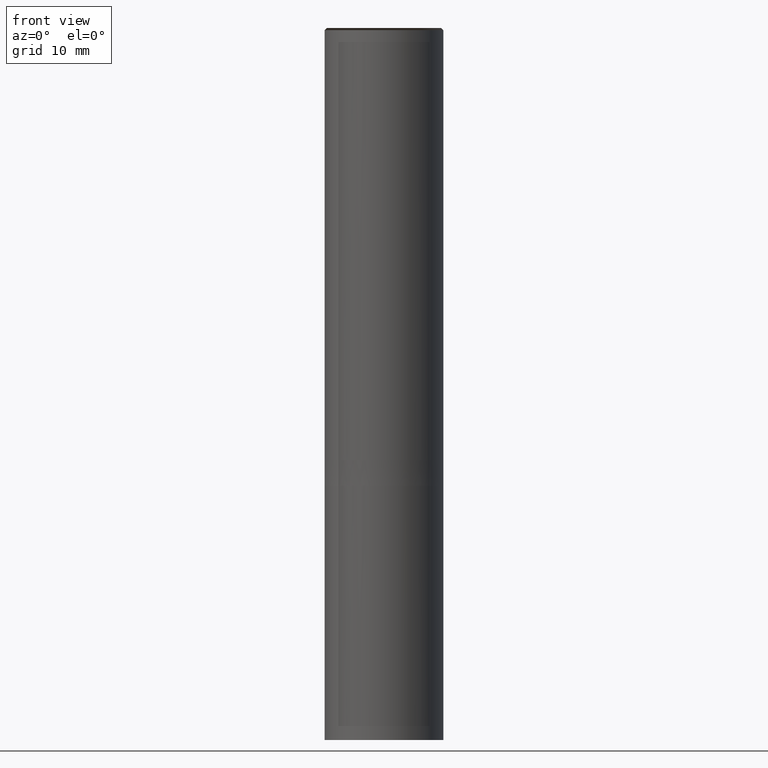
[diagram: clean part render]
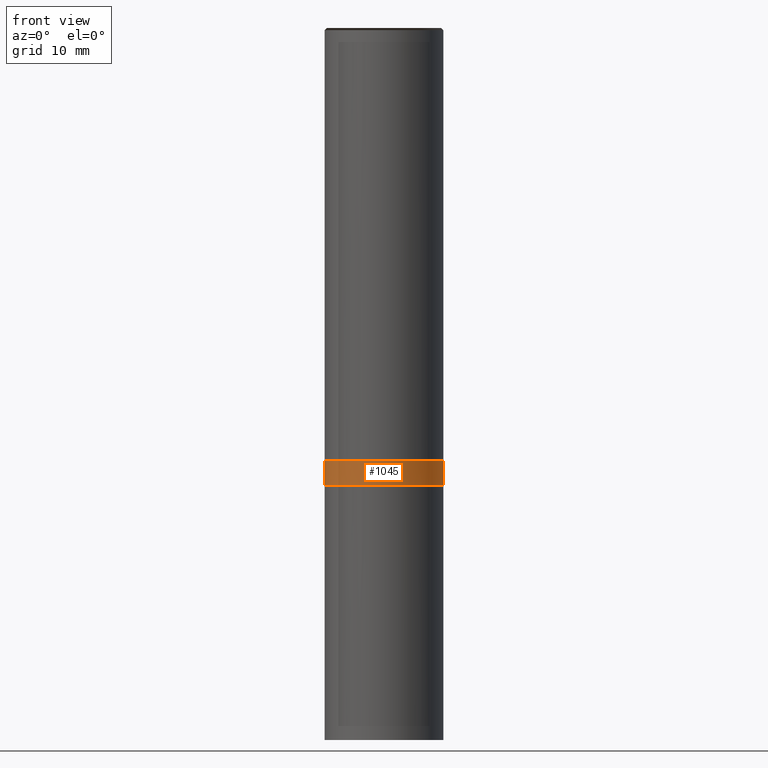
[diagram: same view with one face highlighted and labeled with its STEP entity id]
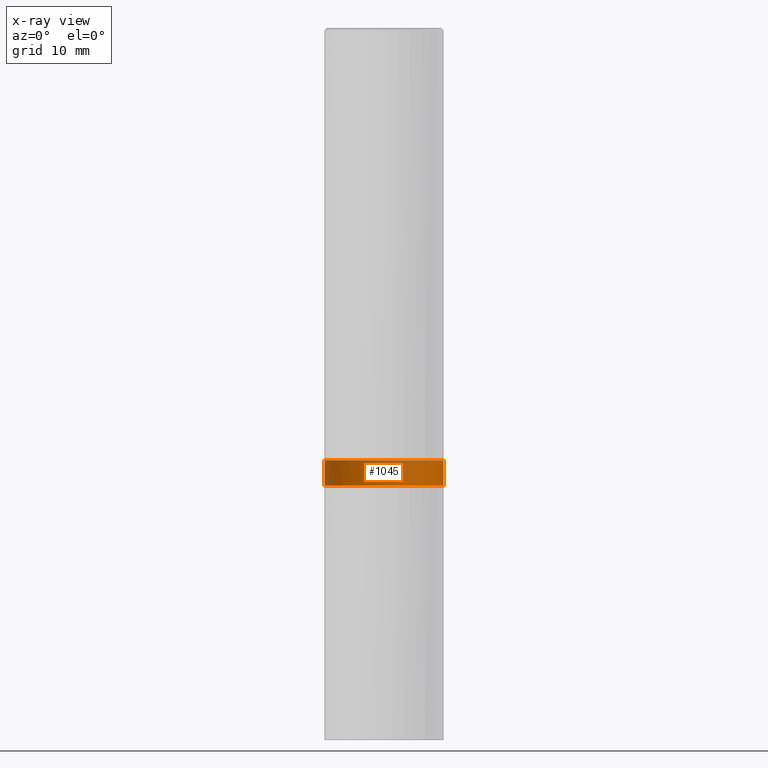
[diagram: x-ray of the same camera — body ghosted, the highlighted face saturated]
A machine part, front view. The second image highlights one B-rep face of the part: STEP entity #1045.
The next image is the same camera in x-ray: the body ghosted, the highlighted face saturated — about 0% of this face is hidden behind the body in this view.
In plain terms, the highlighted face is a freeform B-spline surface patch.
Its self-contained STEP definition (entity closure, byte-faithful):
#768=CARTESIAN_POINT('',(7.0,0.0,-3.0));
#772=CARTESIAN_POINT('',(-7.0,0.0,-3.0));
#777=CARTESIAN_POINT('',(-7.0,-7.0,-3.0));
#778=CARTESIAN_POINT('',(0.0,-7.0,-3.0));
#779=CARTESIAN_POINT('',(7.0,-7.0,-3.0));
#780=CARTESIAN_POINT('',(7.0,0.0,0.0));
#784=CARTESIAN_POINT('',(-7.0,0.0,0.0));
#796=CARTESIAN_POINT('',(-7.0,-7.0,0.0));
#797=CARTESIAN_POINT('',(0.0,-7.0,0.0));
#798=CARTESIAN_POINT('',(7.0,-7.0,0.0));
#1026=(
BOUNDED_SURFACE()
B_SPLINE_SURFACE(1,2,(
(#772,#777,#778,#779,#768),
(#784,#796,#797,#798,#780)
), .UNSPECIFIED.,.F.,.F.,.F.)
B_SPLINE_SURFACE_WITH_KNOTS((2,2),(3,2,3),(
0.0,1.0),(
0.0,0.5,1.0), .UNSPECIFIED.)
GEOMETRIC_REPRESENTATION_ITEM()
RATIONAL_B_SPLINE_SURFACE(((1.0,0.707106781187,1.0,0.707106781187,1.0),
(1.0,0.707106781187,1.0,0.707106781187,1.0)
))
REPRESENTATION_ITEM('')
SURFACE()
);
#1027=(
BOUNDED_CURVE()
B_SPLINE_CURVE(2,(#768,#779,#778,#777,#772),.UNSPECIFIED.,.F.,.F.)
B_SPLINE_CURVE_WITH_KNOTS((3,2,3),
(0.0,0.5,1.0),.UNSPECIFIED.)
CURVE()
GEOMETRIC_REPRESENTATION_ITEM()
RATIONAL_B_SPLINE_CURVE((1.0,0.707106781187,1.0,0.707106781187,1.0))
REPRESENTATION_ITEM('')
);
#1028=(
BOUNDED_CURVE()
B_SPLINE_CURVE(1,(#772,#784),.UNSPECIFIED.,.F.,.F.)
B_SPLINE_CURVE_WITH_KNOTS((2,2),
(0.0,1.0),.UNSPECIFIED.)
CURVE()
GEOMETRIC_REPRESENTATION_ITEM()
RATIONAL_B_SPLINE_CURVE((1.0,1.0))
REPRESENTATION_ITEM('')
);
#1029=(
BOUNDED_CURVE()
B_SPLINE_CURVE(2,(#784,#796,#797,#798,#780),.UNSPECIFIED.,.F.,.F.)
B_SPLINE_CURVE_WITH_KNOTS((3,2,3),
(0.0,0.5,1.0),.UNSPECIFIED.)
CURVE()
GEOMETRIC_REPRESENTATION_ITEM()
RATIONAL_B_SPLINE_CURVE((1.0,0.707106781187,1.0,0.707106781187,1.0))
REPRESENTATION_ITEM('')
);
#1030=(
BOUNDED_CURVE()
B_SPLINE_CURVE(1,(#780,#768),.UNSPECIFIED.,.F.,.F.)
B_SPLINE_CURVE_WITH_KNOTS((2,2),
(0.0,1.0),.UNSPECIFIED.)
CURVE()
GEOMETRIC_REPRESENTATION_ITEM()
RATIONAL_B_SPLINE_CURVE((1.0,1.0))
REPRESENTATION_ITEM('')
);
#1031=VERTEX_POINT('',#768);
#1032=VERTEX_POINT('',#772);
#1033=VERTEX_POINT('',#780);
#1034=VERTEX_POINT('',#784);
#1035=EDGE_CURVE('',#1031,#1032,#1027,.T.);
#1036=EDGE_CURVE('',#1032,#1034,#1028,.T.);
#1037=EDGE_CURVE('',#1034,#1033,#1029,.T.);
#1038=EDGE_CURVE('',#1033,#1031,#1030,.T.);
#1039=ORIENTED_EDGE('',*,*,#1035,.T.);
#1040=ORIENTED_EDGE('',*,*,#1036,.T.);
#1041=ORIENTED_EDGE('',*,*,#1037,.T.);
#1042=ORIENTED_EDGE('',*,*,#1038,.T.);
#1043=EDGE_LOOP('',(#1039,#1040,#1041,#1042));
#1044=FACE_OUTER_BOUND('',#1043,.T.);
#1045=ADVANCED_FACE('',(#1044),#1026,.T.);